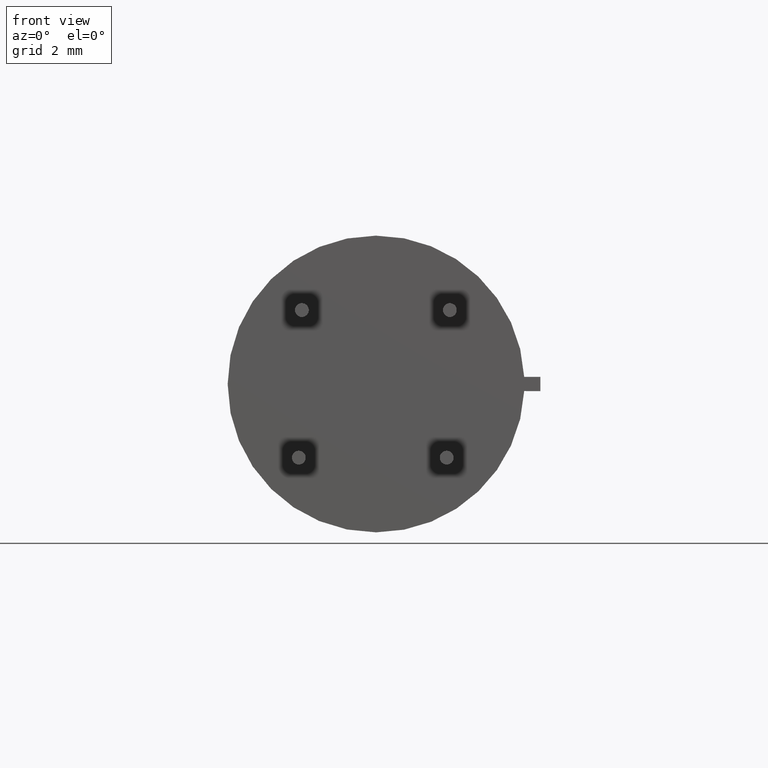
[diagram: clean part render]
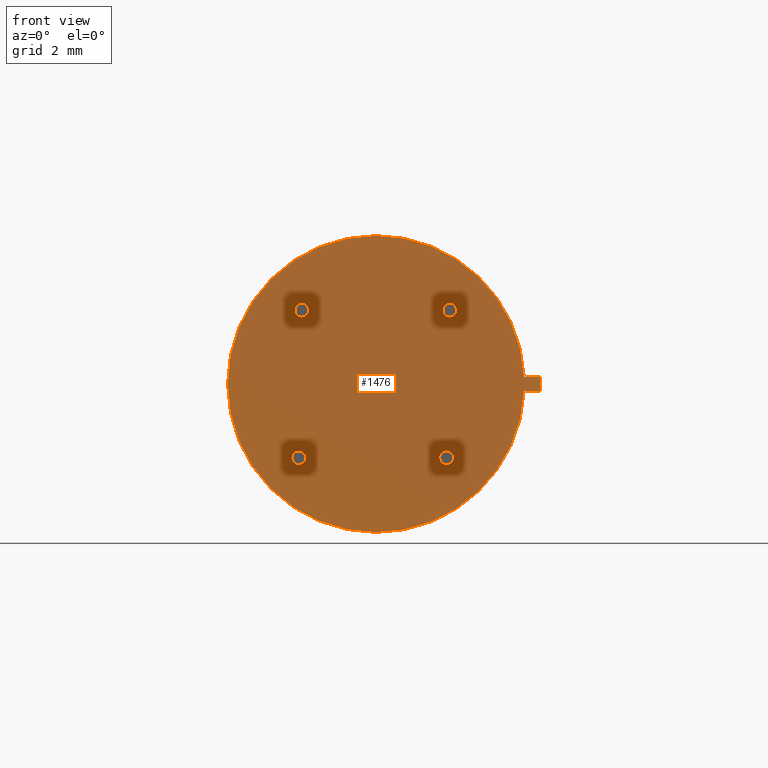
[diagram: same view with one face highlighted and labeled with its STEP entity id]
A machine part, front view. The second image highlights one B-rep face of the part: STEP entity #1476.
In plain terms, the highlighted planar face has unit normal (0, 1, 0).
Its self-contained STEP definition (entity closure, byte-faithful):
#15 = DIRECTION ( 'NONE',  ( 0.9999974153875927918, 0.000000000000000000, -0.002273591461578715073 ) ) ;
#19 = LINE ( 'NONE', #3463, #2064 ) ;
#31 = CARTESIAN_POINT ( 'NONE',  ( -2.297499982386057571, 0.000000000000000000, 2.284999999999999254 ) ) ;
#38 = VERTEX_POINT ( 'NONE', #2267 ) ;
#50 = CIRCLE ( 'NONE', #471, 0.2149999999999999134 ) ;
#82 = DIRECTION ( 'NONE',  ( 0.000000000000000000, 0.000000000000000000, 1.000000000000000000 ) ) ;
#93 = CARTESIAN_POINT ( 'NONE',  ( 4.589796723945217316, 0.000000000000000000, -0.2186116027610453261 ) ) ;
#117 = DIRECTION ( 'NONE',  ( 0.000000000000000000, 0.000000000000000000, 1.000000000000000000 ) ) ;
#153 = VERTEX_POINT ( 'NONE', #1831 ) ;
#180 = AXIS2_PLACEMENT_3D ( 'NONE', #1914, #3698, #1617 ) ;
#186 = CIRCLE ( 'NONE', #2250, 0.2150000000000003575 ) ;
#226 = PLANE ( 'NONE',  #399 ) ;
#242 = AXIS2_PLACEMENT_3D ( 'NONE', #3379, #3069, #1999 ) ;
#264 = DIRECTION ( 'NONE',  ( 0.000000000000000000, 1.000000000000000000, 0.000000000000000000 ) ) ;
#294 = CIRCLE ( 'NONE', #2116, 4.594999999999999751 ) ;
#341 = CARTESIAN_POINT ( 'NONE',  ( 2.187371221567151025, 0.000000000000000000, -2.284999999999999254 ) ) ;
#372 = EDGE_CURVE ( 'NONE', #2825, #2693, #3168, .T. ) ;
#399 = AXIS2_PLACEMENT_3D ( 'NONE', #1113, #2311, #558 ) ;
#403 = CARTESIAN_POINT ( 'NONE',  ( 5.089742443134301020, 0.000000000000000000, 0.2197482780173113659 ) ) ;
#446 = FACE_BOUND ( 'NONE', #2313, .T. ) ;
#465 = CARTESIAN_POINT ( 'NONE',  ( -2.297499982386057571, 0.000000000000000000, 2.499999999999999556 ) ) ;
#471 = AXIS2_PLACEMENT_3D ( 'NONE', #1027, #1620, #1337 ) ;
#506 = ORIENTED_EDGE ( 'NONE', *, *, #2725, .F. ) ;
#518 = DIRECTION ( 'NONE',  ( 0.000000000000000000, 0.000000000000000000, 1.000000000000000000 ) ) ;
#539 = EDGE_CURVE ( 'NONE', #2569, #2686, #186, .T. ) ;
#558 = DIRECTION ( 'NONE',  ( 0.000000000000000000, -0.000000000000000000, 1.000000000000000000 ) ) ;
#593 = AXIS2_PLACEMENT_3D ( 'NONE', #1788, #1589, #117 ) ;
#617 = CARTESIAN_POINT ( 'NONE',  ( 2.284999999999999698, 0.000000000000000000, 2.499999999999999112 ) ) ;
#647 = DIRECTION ( 'NONE',  ( 0.000000000000000000, 1.000000000000000000, 0.000000000000000000 ) ) ;
#673 = ORIENTED_EDGE ( 'NONE', *, *, #3237, .F. ) ;
#712 = DIRECTION ( 'NONE',  ( 0.000000000000000000, 0.000000000000000000, 1.000000000000000000 ) ) ;
#734 = FACE_BOUND ( 'NONE', #2995, .T. ) ;
#760 = EDGE_CURVE ( 'NONE', #1681, #2076, #3167, .T. ) ;
#784 = VERTEX_POINT ( 'NONE', #617 ) ;
#924 = DIRECTION ( 'NONE',  ( 0.000000000000000000, 0.000000000000000000, 1.000000000000000000 ) ) ;
#941 = AXIS2_PLACEMENT_3D ( 'NONE', #341, #3678, #2480 ) ;
#981 = DIRECTION ( 'NONE',  ( 0.000000000000000000, 0.000000000000000000, 1.000000000000000000 ) ) ;
#1027 = CARTESIAN_POINT ( 'NONE',  ( 2.284999999999999698, 0.000000000000000000, 2.284999999999999254 ) ) ;
#1098 = CARTESIAN_POINT ( 'NONE',  ( -2.392499999999999627, 0.000000000000000000, -2.284999999999999254 ) ) ;
#1113 = CARTESIAN_POINT ( 'NONE',  ( 0.000000000000000000, 0.000000000000000000, 0.000000000000000000 ) ) ;
#1127 = EDGE_LOOP ( 'NONE', ( #506, #3295, #1217, #1804, #673, #1213 ) ) ;
#1155 = VECTOR ( 'NONE', #15, 1000.000000000000114 ) ;
#1168 = EDGE_CURVE ( 'NONE', #3748, #3524, #3733, .T. ) ;
#1213 = ORIENTED_EDGE ( 'NONE', *, *, #2828, .F. ) ;
#1217 = ORIENTED_EDGE ( 'NONE', *, *, #3630, .F. ) ;
#1227 = EDGE_CURVE ( 'NONE', #2686, #2569, #3092, .T. ) ;
#1268 = EDGE_CURVE ( 'NONE', #153, #38, #2103, .T. ) ;
#1337 = DIRECTION ( 'NONE',  ( 0.000000000000000000, 0.000000000000000000, 1.000000000000000000 ) ) ;
#1341 = AXIS2_PLACEMENT_3D ( 'NONE', #31, #3563, #924 ) ;
#1476 = ADVANCED_FACE ( 'NONE', ( #734, #1898, #3054, #446, #2249 ), #226, .F. ) ;
#1536 = DIRECTION ( 'NONE',  ( -0.000000000000000000, -1.000000000000000000, -0.000000000000000000 ) ) ;
#1589 = DIRECTION ( 'NONE',  ( -0.000000000000000000, -1.000000000000000000, -0.000000000000000000 ) ) ;
#1617 = DIRECTION ( 'NONE',  ( 0.000000000000000000, 0.000000000000000000, 1.000000000000000000 ) ) ;
#1620 = DIRECTION ( 'NONE',  ( 0.000000000000000000, 1.000000000000000000, 0.000000000000000000 ) ) ;
#1632 = ORIENTED_EDGE ( 'NONE', *, *, #2396, .T. ) ;
#1681 = VERTEX_POINT ( 'NONE', #403 ) ;
#1716 = CARTESIAN_POINT ( 'NONE',  ( 2.284999999999999698, 0.000000000000000000, 2.069999999999999396 ) ) ;
#1741 = ORIENTED_EDGE ( 'NONE', *, *, #3307, .F. ) ;
#1769 = DIRECTION ( 'NONE',  ( 0.000000000000000000, 0.000000000000000000, -1.000000000000000000 ) ) ;
#1775 = CARTESIAN_POINT ( 'NONE',  ( -2.297499982386057571, 0.000000000000000000, 2.284999999999999254 ) ) ;
#1788 = CARTESIAN_POINT ( 'NONE',  ( 2.187371221567151025, 0.000000000000000000, -2.284999999999999254 ) ) ;
#1789 = CARTESIAN_POINT ( 'NONE',  ( 0.000000000000000000, 0.000000000000000000, 0.000000000000000000 ) ) ;
#1804 = ORIENTED_EDGE ( 'NONE', *, *, #760, .T. ) ;
#1807 = AXIS2_PLACEMENT_3D ( 'NONE', #2173, #3328, #712 ) ;
#1823 = DIRECTION ( 'NONE',  ( 0.000000000000000000, 0.000000000000000000, 1.000000000000000000 ) ) ;
#1831 = CARTESIAN_POINT ( 'NONE',  ( 2.187371221567151025, 0.000000000000000000, -2.069999999999999396 ) ) ;
#1860 = ORIENTED_EDGE ( 'NONE', *, *, #1227, .F. ) ;
#1863 = CIRCLE ( 'NONE', #593, 0.2149999999999999134 ) ;
#1898 = FACE_BOUND ( 'NONE', #2838, .T. ) ;
#1914 = CARTESIAN_POINT ( 'NONE',  ( 2.284999999999999698, 0.000000000000000000, 2.284999999999999254 ) ) ;
#1945 = CARTESIAN_POINT ( 'NONE',  ( 5.089742443134301020, 0.000000000000000000, -0.2197482780173113659 ) ) ;
#1981 = CARTESIAN_POINT ( 'NONE',  ( -2.297499982386057571, 0.000000000000000000, 2.069999999999998952 ) ) ;
#1999 = DIRECTION ( 'NONE',  ( 0.000000000000000000, 0.000000000000000000, 1.000000000000000000 ) ) ;
#2001 = DIRECTION ( 'NONE',  ( -1.000000000000000000, 0.000000000000000000, 0.000000000000000000 ) ) ;
#2021 = CARTESIAN_POINT ( 'NONE',  ( 0.000000000000000000, 0.000000000000000000, 0.000000000000000000 ) ) ;
#2029 = EDGE_LOOP ( 'NONE', ( #2738, #1741 ) ) ;
#2039 = CARTESIAN_POINT ( 'NONE',  ( 5.089742443134301020, 0.000000000000000000, 0.2197482780173113659 ) ) ;
#2064 = VECTOR ( 'NONE', #1769, 1000.000000000000000 ) ;
#2076 = VERTEX_POINT ( 'NONE', #2743 ) ;
#2092 = ORIENTED_EDGE ( 'NONE', *, *, #2453, .F. ) ;
#2103 = CIRCLE ( 'NONE', #941, 0.2149999999999999134 ) ;
#2104 = CARTESIAN_POINT ( 'NONE',  ( -2.392499999999999627, 0.000000000000000000, -2.499999999999999112 ) ) ;
#2116 = AXIS2_PLACEMENT_3D ( 'NONE', #1789, #647, #1823 ) ;
#2173 = CARTESIAN_POINT ( 'NONE',  ( -2.392499999999999627, 0.000000000000000000, -2.284999999999999254 ) ) ;
#2199 = ORIENTED_EDGE ( 'NONE', *, *, #372, .F. ) ;
#2249 = FACE_OUTER_BOUND ( 'NONE', #1127, .T. ) ;
#2250 = AXIS2_PLACEMENT_3D ( 'NONE', #1775, #1536, #82 ) ;
#2267 = CARTESIAN_POINT ( 'NONE',  ( 2.187371221567151025, 0.000000000000000000, -2.499999999999999112 ) ) ;
#2294 = VERTEX_POINT ( 'NONE', #3234 ) ;
#2311 = DIRECTION ( 'NONE',  ( 0.000000000000000000, 1.000000000000000000, 0.000000000000000000 ) ) ;
#2313 = EDGE_LOOP ( 'NONE', ( #1632, #2688 ) ) ;
#2396 = EDGE_CURVE ( 'NONE', #784, #3282, #50, .T. ) ;
#2432 = VECTOR ( 'NONE', #2001, 1000.000000000000000 ) ;
#2453 = EDGE_CURVE ( 'NONE', #2693, #2825, #3212, .T. ) ;
#2480 = DIRECTION ( 'NONE',  ( 0.000000000000000000, 0.000000000000000000, 1.000000000000000000 ) ) ;
#2569 = VERTEX_POINT ( 'NONE', #1981 ) ;
#2595 = CIRCLE ( 'NONE', #2901, 4.594999999999999751 ) ;
#2604 = DIRECTION ( 'NONE',  ( -0.000000000000000000, -1.000000000000000000, -0.000000000000000000 ) ) ;
#2608 = CARTESIAN_POINT ( 'NONE',  ( 4.589796723945217316, 0.000000000000000000, -0.2186116027610452706 ) ) ;
#2686 = VERTEX_POINT ( 'NONE', #465 ) ;
#2688 = ORIENTED_EDGE ( 'NONE', *, *, #2771, .T. ) ;
#2693 = VERTEX_POINT ( 'NONE', #3094 ) ;
#2725 = EDGE_CURVE ( 'NONE', #3748, #3623, #3511, .T. ) ;
#2738 = ORIENTED_EDGE ( 'NONE', *, *, #1268, .F. ) ;
#2743 = CARTESIAN_POINT ( 'NONE',  ( 4.589742443134301908, 0.000000000000000000, 0.2197482780173113659 ) ) ;
#2771 = EDGE_CURVE ( 'NONE', #3282, #784, #3395, .T. ) ;
#2806 = AXIS2_PLACEMENT_3D ( 'NONE', #1098, #2604, #518 ) ;
#2825 = VERTEX_POINT ( 'NONE', #2104 ) ;
#2828 = EDGE_CURVE ( 'NONE', #3623, #2294, #2595, .T. ) ;
#2838 = EDGE_LOOP ( 'NONE', ( #2092, #2199 ) ) ;
#2901 = AXIS2_PLACEMENT_3D ( 'NONE', #2021, #264, #981 ) ;
#2924 = ORIENTED_EDGE ( 'NONE', *, *, #539, .F. ) ;
#2995 = EDGE_LOOP ( 'NONE', ( #1860, #2924 ) ) ;
#3054 = FACE_BOUND ( 'NONE', #2029, .T. ) ;
#3069 = DIRECTION ( 'NONE',  ( 0.000000000000000000, 1.000000000000000000, 0.000000000000000000 ) ) ;
#3092 = CIRCLE ( 'NONE', #1341, 0.2150000000000003575 ) ;
#3094 = CARTESIAN_POINT ( 'NONE',  ( -2.392499999999999627, 0.000000000000000000, -2.069999999999999396 ) ) ;
#3155 = CARTESIAN_POINT ( 'NONE',  ( 0.000000000000000000, 0.000000000000000000, -4.594999999999999751 ) ) ;
#3167 = LINE ( 'NONE', #2039, #2432 ) ;
#3168 = CIRCLE ( 'NONE', #2806, 0.2149999999999999134 ) ;
#3212 = CIRCLE ( 'NONE', #1807, 0.2149999999999999134 ) ;
#3234 = CARTESIAN_POINT ( 'NONE',  ( 5.627252042082088222E-16, 0.000000000000000000, 4.594999999999999751 ) ) ;
#3237 = EDGE_CURVE ( 'NONE', #2294, #2076, #294, .T. ) ;
#3282 = VERTEX_POINT ( 'NONE', #1716 ) ;
#3295 = ORIENTED_EDGE ( 'NONE', *, *, #1168, .T. ) ;
#3307 = EDGE_CURVE ( 'NONE', #38, #153, #1863, .T. ) ;
#3328 = DIRECTION ( 'NONE',  ( -0.000000000000000000, -1.000000000000000000, -0.000000000000000000 ) ) ;
#3379 = CARTESIAN_POINT ( 'NONE',  ( 0.000000000000000000, 0.000000000000000000, 0.000000000000000000 ) ) ;
#3395 = CIRCLE ( 'NONE', #180, 0.2149999999999999134 ) ;
#3463 = CARTESIAN_POINT ( 'NONE',  ( 5.089742443134301020, 0.000000000000000000, 0.2197482780173113659 ) ) ;
#3511 = CIRCLE ( 'NONE', #242, 4.594999999999999751 ) ;
#3524 = VERTEX_POINT ( 'NONE', #1945 ) ;
#3563 = DIRECTION ( 'NONE',  ( -0.000000000000000000, -1.000000000000000000, -0.000000000000000000 ) ) ;
#3623 = VERTEX_POINT ( 'NONE', #3155 ) ;
#3630 = EDGE_CURVE ( 'NONE', #1681, #3524, #19, .T. ) ;
#3678 = DIRECTION ( 'NONE',  ( -0.000000000000000000, -1.000000000000000000, -0.000000000000000000 ) ) ;
#3698 = DIRECTION ( 'NONE',  ( 0.000000000000000000, 1.000000000000000000, 0.000000000000000000 ) ) ;
#3733 = LINE ( 'NONE', #2608, #1155 ) ;
#3748 = VERTEX_POINT ( 'NONE', #93 ) ;